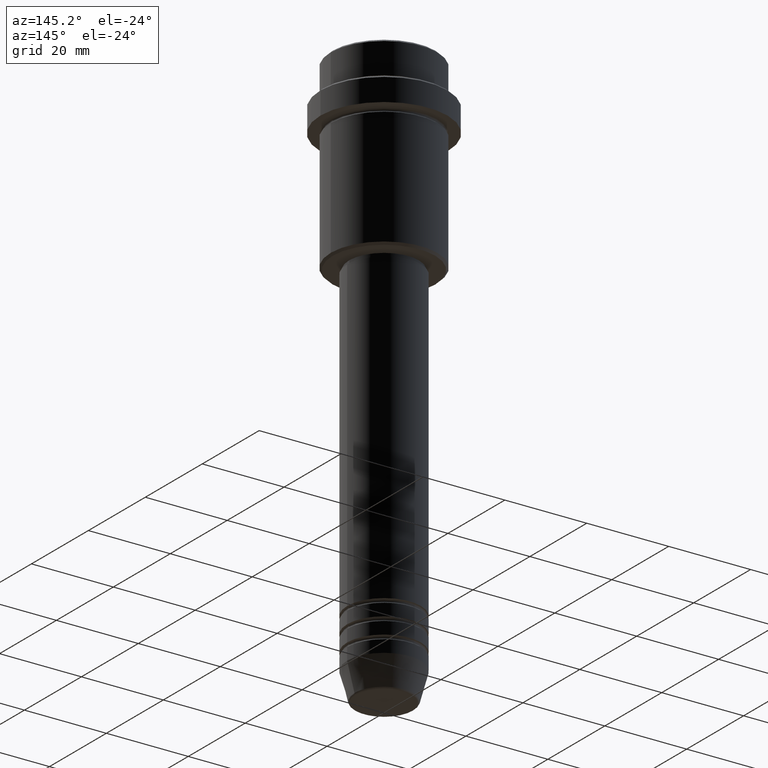
[diagram: clean part render]
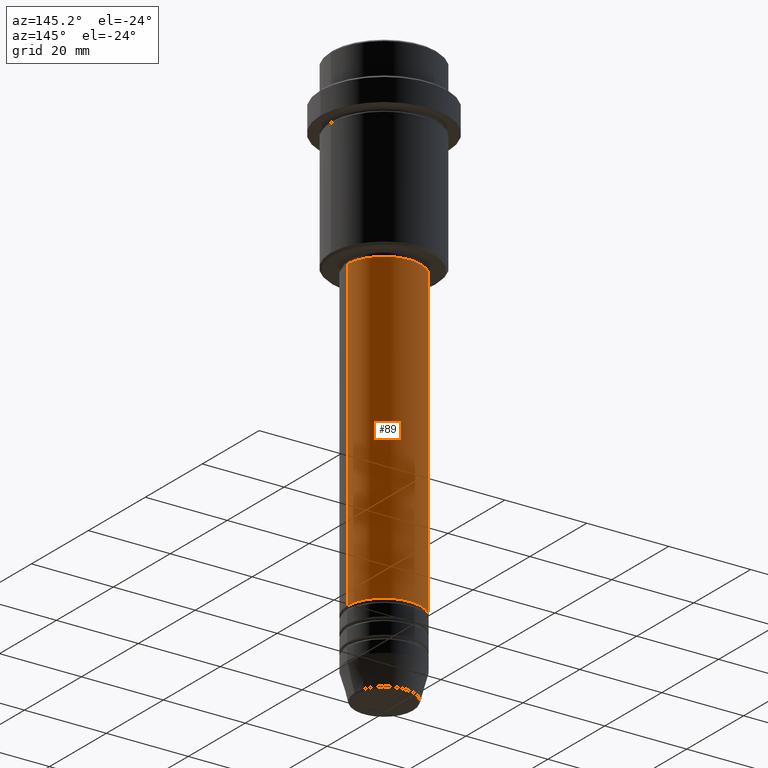
[diagram: same view with one face highlighted and labeled with its STEP entity id]
A machine part, auxiliary view. The second image highlights one B-rep face of the part: STEP entity #89.
In plain terms, the highlighted cylindrical surface (partial cylindrical patch) has radius 9 mm, axis along (-0, -0, 1).
Its self-contained STEP definition (entity closure, byte-faithful):
#25 = CARTESIAN_POINT ( 'NONE',  ( 9.000000000000001776, 0.000000000000000000, 0.000000000000000000 ) ) ;
#89 = ADVANCED_FACE ( 'NONE', ( #758 ), #1067, .T. ) ;
#97 = DIRECTION ( 'NONE',  ( -0.000000000000000000, -0.000000000000000000, 1.000000000000000000 ) ) ;
#136 = DIRECTION ( 'NONE',  ( -0.000000000000000000, -0.000000000000000000, 1.000000000000000000 ) ) ;
#179 = DIRECTION ( 'NONE',  ( -0.000000000000000000, -0.000000000000000000, 1.000000000000000000 ) ) ;
#229 = EDGE_CURVE ( 'NONE', #395, #1151, #966, .T. ) ;
#298 = VERTEX_POINT ( 'NONE', #1305 ) ;
#306 = CARTESIAN_POINT ( 'NONE',  ( 0.000000000000000000, 0.000000000000000000, 0.000000000000000000 ) ) ;
#395 = VERTEX_POINT ( 'NONE', #1077 ) ;
#433 = ORIENTED_EDGE ( 'NONE', *, *, #892, .F. ) ;
#447 = AXIS2_PLACEMENT_3D ( 'NONE', #581, #590, #470 ) ;
#455 = CARTESIAN_POINT ( 'NONE',  ( 0.000000000000000000, 0.000000000000000000, -46.00000000000001421 ) ) ;
#467 = DIRECTION ( 'NONE',  ( -0.000000000000000000, -0.000000000000000000, 1.000000000000000000 ) ) ;
#470 = DIRECTION ( 'NONE',  ( 1.000000000000000000, 0.000000000000000000, 0.000000000000000000 ) ) ;
#474 = EDGE_CURVE ( 'NONE', #298, #760, #990, .T. ) ;
#533 = CARTESIAN_POINT ( 'NONE',  ( -9.000000000000001776, 1.102182119232617911E-15, 0.000000000000000000 ) ) ;
#581 = CARTESIAN_POINT ( 'NONE',  ( 0.000000000000000000, 0.000000000000000000, -120.9999999999999005 ) ) ;
#590 = DIRECTION ( 'NONE',  ( -0.000000000000000000, -0.000000000000000000, 1.000000000000000000 ) ) ;
#718 = EDGE_LOOP ( 'NONE', ( #1048, #1362, #1295, #433 ) ) ;
#758 = FACE_OUTER_BOUND ( 'NONE', #718, .T. ) ;
#760 = VERTEX_POINT ( 'NONE', #918 ) ;
#814 = VECTOR ( 'NONE', #467, 1000.000000000000000 ) ;
#877 = DIRECTION ( 'NONE',  ( 1.000000000000000000, 0.000000000000000000, 0.000000000000000000 ) ) ;
#892 = EDGE_CURVE ( 'NONE', #298, #395, #1236, .T. ) ;
#918 = CARTESIAN_POINT ( 'NONE',  ( -9.000000000000000000, 1.102182119232617714E-15, -120.9999999999999005 ) ) ;
#966 = CIRCLE ( 'NONE', #1013, 9.000000000000001776 ) ;
#988 = AXIS2_PLACEMENT_3D ( 'NONE', #306, #179, #1175 ) ;
#990 = CIRCLE ( 'NONE', #447, 9.000000000000000000 ) ;
#1013 = AXIS2_PLACEMENT_3D ( 'NONE', #455, #136, #877 ) ;
#1048 = ORIENTED_EDGE ( 'NONE', *, *, #474, .T. ) ;
#1067 = CYLINDRICAL_SURFACE ( 'NONE', #988, 9.000000000000001776 ) ;
#1070 = CARTESIAN_POINT ( 'NONE',  ( -9.000000000000001776, 1.102182119232617911E-15, -46.00000000000001421 ) ) ;
#1077 = CARTESIAN_POINT ( 'NONE',  ( 9.000000000000001776, 0.000000000000000000, -46.00000000000001421 ) ) ;
#1087 = EDGE_CURVE ( 'NONE', #760, #1151, #1366, .T. ) ;
#1103 = VECTOR ( 'NONE', #97, 1000.000000000000000 ) ;
#1151 = VERTEX_POINT ( 'NONE', #1070 ) ;
#1175 = DIRECTION ( 'NONE',  ( 1.000000000000000000, 0.000000000000000000, 0.000000000000000000 ) ) ;
#1236 = LINE ( 'NONE', #25, #814 ) ;
#1295 = ORIENTED_EDGE ( 'NONE', *, *, #229, .F. ) ;
#1305 = CARTESIAN_POINT ( 'NONE',  ( 9.000000000000000000, 0.000000000000000000, -120.9999999999999005 ) ) ;
#1362 = ORIENTED_EDGE ( 'NONE', *, *, #1087, .T. ) ;
#1366 = LINE ( 'NONE', #533, #1103 ) ;